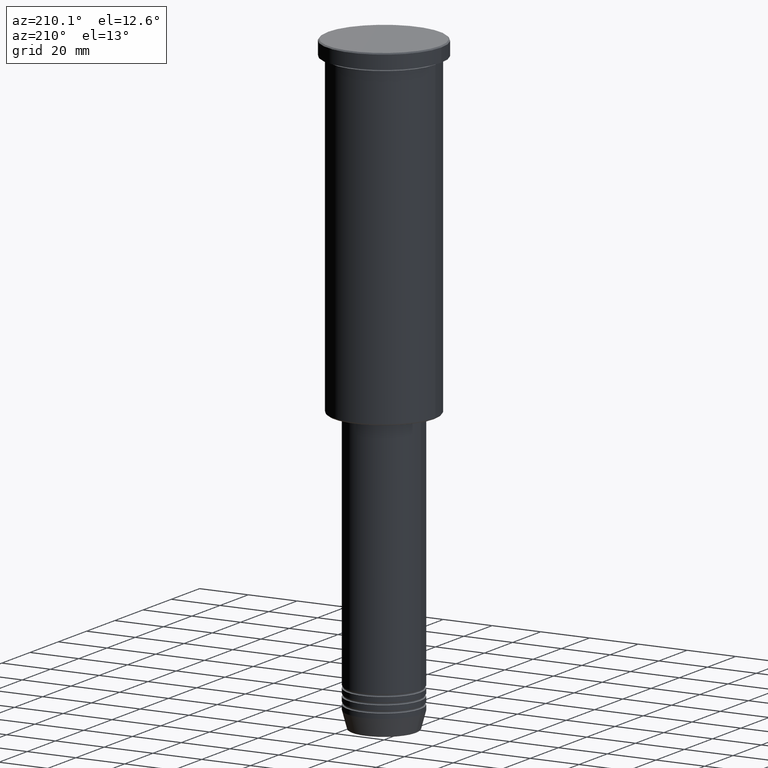
[diagram: clean part render]
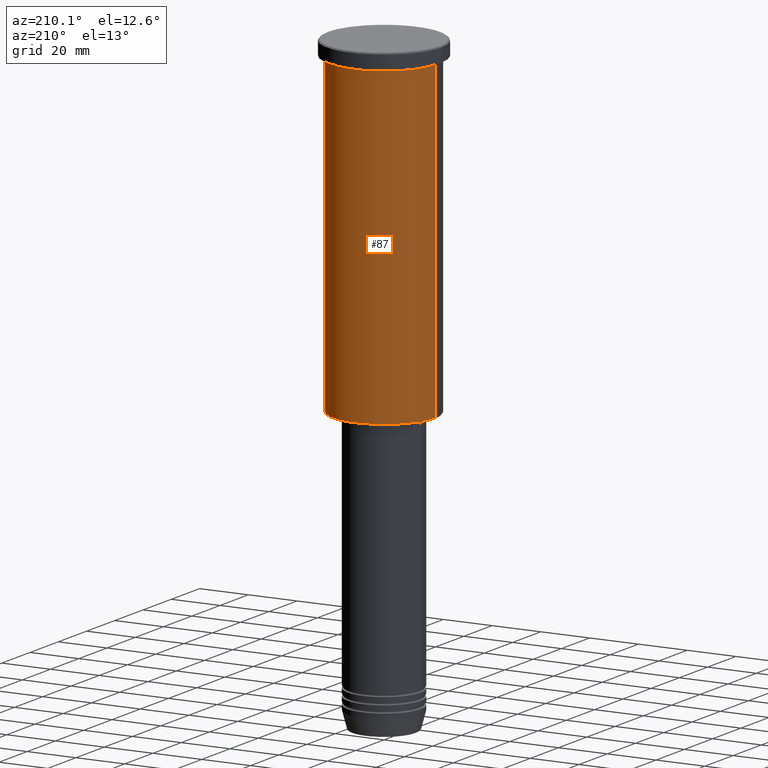
[diagram: same view with one face highlighted and labeled with its STEP entity id]
A machine part, auxiliary view. The second image highlights one B-rep face of the part: STEP entity #87.
In plain terms, the highlighted cylindrical surface (partial cylindrical patch) has radius 21 mm, axis along (-0, -0, 1).
Its self-contained STEP definition (entity closure, byte-faithful):
#85 = CARTESIAN_POINT ( 'NONE',  ( 0.000000000000000000, 0.000000000000000000, -135.5000000000000000 ) ) ;
#87 = ADVANCED_FACE ( 'NONE', ( #740 ), #97, .T. ) ;
#97 = CYLINDRICAL_SURFACE ( 'NONE', #1012, 21.00000000000000000 ) ;
#105 = VECTOR ( 'NONE', #902, 1000.000000000000000 ) ;
#149 = CARTESIAN_POINT ( 'NONE',  ( 21.00000000000000000, 0.000000000000000000, -6.999999999999994671 ) ) ;
#167 = DIRECTION ( 'NONE',  ( -0.000000000000000000, -0.000000000000000000, 1.000000000000000000 ) ) ;
#192 = VERTEX_POINT ( 'NONE', #149 ) ;
#206 = AXIS2_PLACEMENT_3D ( 'NONE', #270, #637, #455 ) ;
#270 = CARTESIAN_POINT ( 'NONE',  ( 0.000000000000000000, 0.000000000000000000, -6.999999999999994671 ) ) ;
#285 = CARTESIAN_POINT ( 'NONE',  ( -21.00000000000000000, 2.571758278209441661E-15, 0.000000000000000000 ) ) ;
#292 = EDGE_CURVE ( 'NONE', #591, #516, #653, .T. ) ;
#320 = EDGE_CURVE ( 'NONE', #538, #591, #327, .T. ) ;
#327 = CIRCLE ( 'NONE', #990, 21.00000000000000000 ) ;
#397 = CARTESIAN_POINT ( 'NONE',  ( 21.00000000000000000, 0.000000000000000000, -135.5000000000000000 ) ) ;
#455 = DIRECTION ( 'NONE',  ( 1.000000000000000000, 0.000000000000000000, 0.000000000000000000 ) ) ;
#468 = DIRECTION ( 'NONE',  ( 1.000000000000000000, 0.000000000000000000, 0.000000000000000000 ) ) ;
#516 = VERTEX_POINT ( 'NONE', #579 ) ;
#538 = VERTEX_POINT ( 'NONE', #397 ) ;
#541 = CIRCLE ( 'NONE', #206, 21.00000000000000000 ) ;
#579 = CARTESIAN_POINT ( 'NONE',  ( -21.00000000000000000, 2.571758278209441661E-15, -6.999999999999994671 ) ) ;
#591 = VERTEX_POINT ( 'NONE', #1177 ) ;
#610 = LINE ( 'NONE', #956, #745 ) ;
#623 = EDGE_CURVE ( 'NONE', #192, #516, #541, .T. ) ;
#628 = ORIENTED_EDGE ( 'NONE', *, *, #292, .T. ) ;
#637 = DIRECTION ( 'NONE',  ( -0.000000000000000000, -0.000000000000000000, 1.000000000000000000 ) ) ;
#647 = CARTESIAN_POINT ( 'NONE',  ( 0.000000000000000000, 0.000000000000000000, 0.000000000000000000 ) ) ;
#653 = LINE ( 'NONE', #285, #105 ) ;
#740 = FACE_OUTER_BOUND ( 'NONE', #842, .T. ) ;
#745 = VECTOR ( 'NONE', #167, 1000.000000000000000 ) ;
#805 = ORIENTED_EDGE ( 'NONE', *, *, #849, .F. ) ;
#810 = ORIENTED_EDGE ( 'NONE', *, *, #623, .F. ) ;
#842 = EDGE_LOOP ( 'NONE', ( #1060, #628, #810, #805 ) ) ;
#849 = EDGE_CURVE ( 'NONE', #538, #192, #610, .T. ) ;
#902 = DIRECTION ( 'NONE',  ( -0.000000000000000000, -0.000000000000000000, 1.000000000000000000 ) ) ;
#956 = CARTESIAN_POINT ( 'NONE',  ( 21.00000000000000000, 0.000000000000000000, 0.000000000000000000 ) ) ;
#990 = AXIS2_PLACEMENT_3D ( 'NONE', #85, #1073, #1078 ) ;
#1006 = DIRECTION ( 'NONE',  ( -0.000000000000000000, -0.000000000000000000, 1.000000000000000000 ) ) ;
#1012 = AXIS2_PLACEMENT_3D ( 'NONE', #647, #1006, #468 ) ;
#1060 = ORIENTED_EDGE ( 'NONE', *, *, #320, .T. ) ;
#1073 = DIRECTION ( 'NONE',  ( -0.000000000000000000, -0.000000000000000000, 1.000000000000000000 ) ) ;
#1078 = DIRECTION ( 'NONE',  ( -1.000000000000000000, 0.000000000000000000, 0.000000000000000000 ) ) ;
#1177 = CARTESIAN_POINT ( 'NONE',  ( -21.00000000000000000, 2.571758278209441661E-15, -135.5000000000000000 ) ) ;